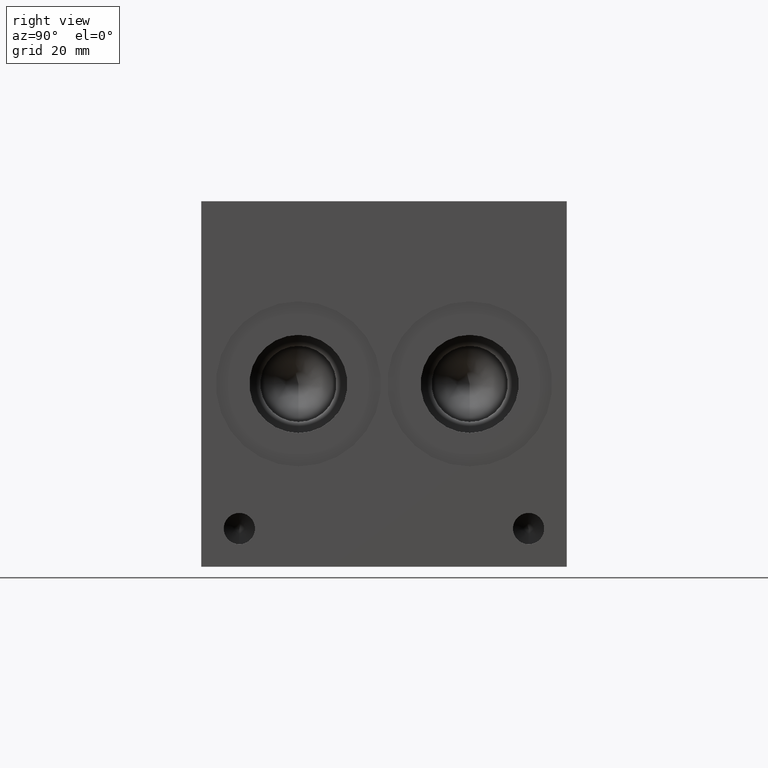
[diagram: clean part render]
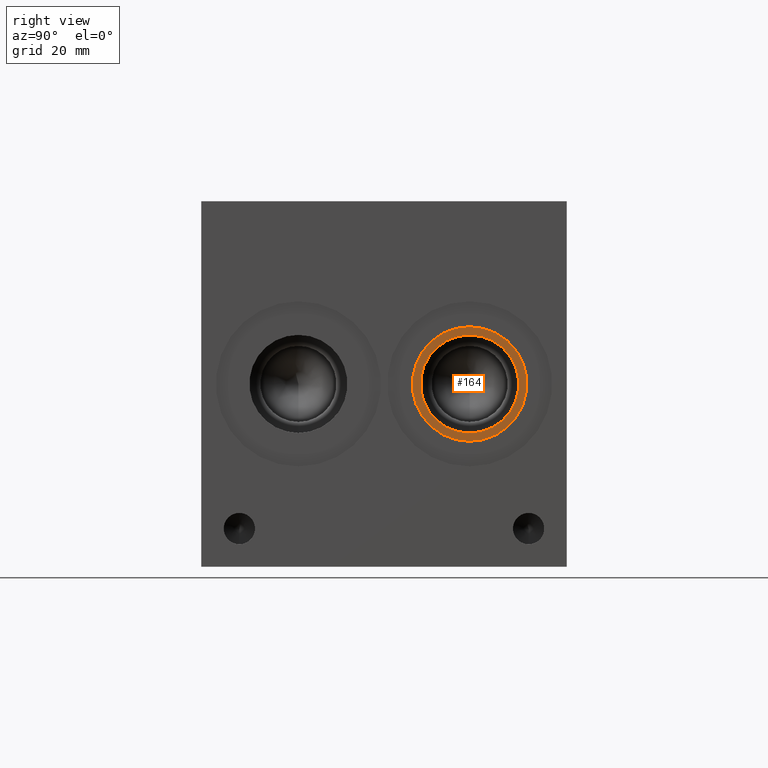
[diagram: same view with one face highlighted and labeled with its STEP entity id]
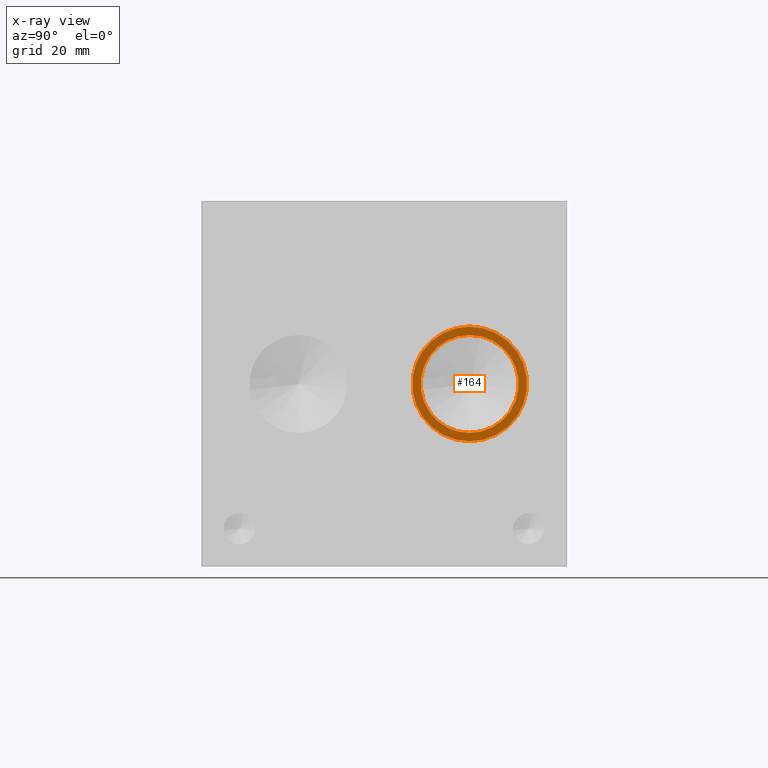
[diagram: x-ray of the same camera — body ghosted, the highlighted face saturated]
A machine part, right view. The second image highlights one B-rep face of the part: STEP entity #164.
The next image is the same camera in x-ray: the body ghosted, the highlighted face saturated — about 0% of this face is hidden behind the body in this view.
In plain terms, the highlighted planar face has unit normal (-1, 0, 0).
Its self-contained STEP definition (entity closure, byte-faithful):
#130=CARTESIAN_POINT('',(104.67340000000002,55.956200000000003,27.8765));
#131=VERTEX_POINT('',#130);
#132=CARTESIAN_POINT('',(104.67340000000002,55.956200000000003,38.100000000000009));
#133=DIRECTION('',(1.0,0.0,0.0));
#134=DIRECTION('',(0.0,0.0,-1.0));
#135=AXIS2_PLACEMENT_3D('',#132,#133,#134);
#136=CIRCLE('',#135,10.223500000000003);
#137=EDGE_CURVE('',#131,#131,#136,.T.);
#145=CARTESIAN_POINT('',(104.67340000000002,55.956200000000003,27.012900000000002));
#146=DIRECTION('',(-1.0,0.0,0.0));
#147=DIRECTION('',(0.0,0.0,1.0));
#148=AXIS2_PLACEMENT_3D('',#145,#146,#147);
#149=PLANE('',#148);
#150=CARTESIAN_POINT('',(104.67340000000002,55.956200000000003,26.149300000000004));
#151=VERTEX_POINT('',#150);
#152=CARTESIAN_POINT('',(104.67340000000002,55.956200000000003,38.100000000000009));
#153=DIRECTION('',(1.0,0.0,0.0));
#154=DIRECTION('',(0.0,0.0,-1.0));
#155=AXIS2_PLACEMENT_3D('',#152,#153,#154);
#156=CIRCLE('',#155,11.950700000000003);
#157=EDGE_CURVE('',#151,#151,#156,.T.);
#158=ORIENTED_EDGE('',*,*,#157,.T.);
#159=EDGE_LOOP('',(#158));
#160=FACE_OUTER_BOUND('',#159,.T.);
#161=ORIENTED_EDGE('',*,*,#137,.F.);
#162=EDGE_LOOP('',(#161));
#163=FACE_BOUND('',#162,.T.);
#164=ADVANCED_FACE('',(#160,#163),#149,.F.);